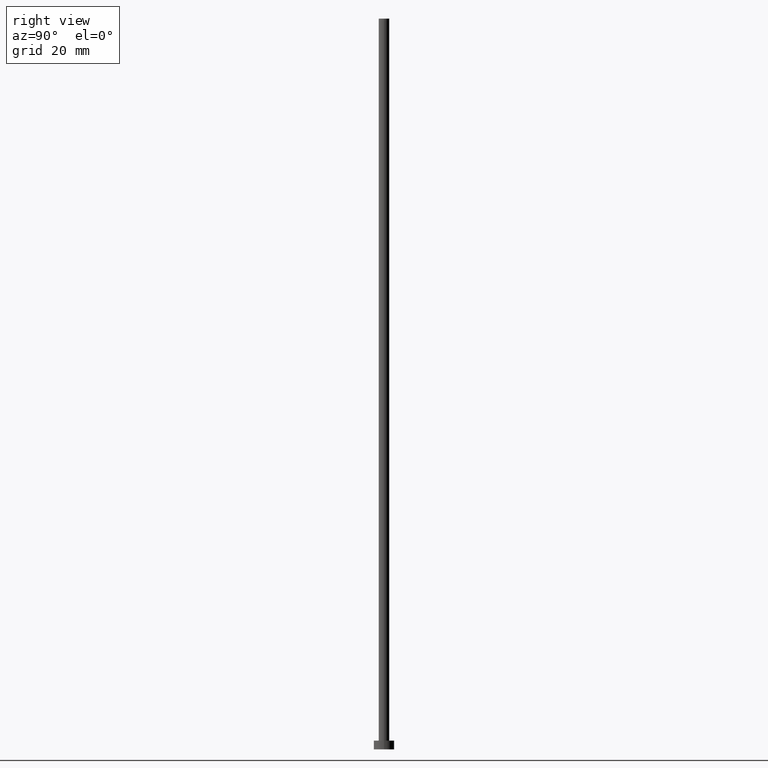
[diagram: clean part render]
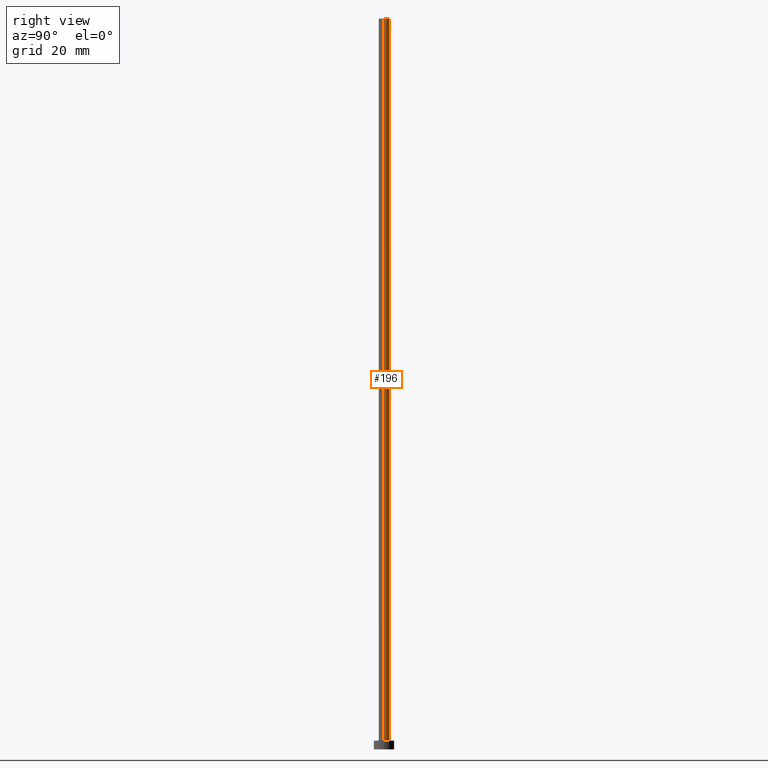
[diagram: same view with one face highlighted and labeled with its STEP entity id]
A machine part, right view. The second image highlights one B-rep face of the part: STEP entity #196.
In plain terms, the highlighted cylindrical surface (edge-blend (fillet) strip) has radius 1.8 mm, axis along (-0, -0, -1).
Its self-contained STEP definition (entity closure, byte-faithful):
#3 = CARTESIAN_POINT ( 'NONE',  ( -1.800000000000000044, 0.000000000000000000, 3.000000000000000000 ) ) ;
#9 = CARTESIAN_POINT ( 'NONE',  ( 0.000000000000000000, 0.000000000000000000, 3.000000000000000000 ) ) ;
#11 = LINE ( 'NONE', #94, #198 ) ;
#23 = ORIENTED_EDGE ( 'NONE', *, *, #150, .T. ) ;
#26 = CARTESIAN_POINT ( 'NONE',  ( -1.800000000000000044, 0.000000000000000000, 250.0000000000000000 ) ) ;
#47 = EDGE_LOOP ( 'NONE', ( #201, #23, #177, #139 ) ) ;
#51 = DIRECTION ( 'NONE',  ( -0.000000000000000000, -0.000000000000000000, -1.000000000000000000 ) ) ;
#63 = CARTESIAN_POINT ( 'NONE',  ( 1.800000000000000044, 2.204364238465235576E-16, 250.0000000000000000 ) ) ;
#69 = VECTOR ( 'NONE', #51, 1000.000000000000000 ) ;
#71 = EDGE_CURVE ( 'NONE', #130, #222, #99, .T. ) ;
#72 = DIRECTION ( 'NONE',  ( 0.000000000000000000, 0.000000000000000000, 1.000000000000000000 ) ) ;
#73 = DIRECTION ( 'NONE',  ( -1.000000000000000000, 0.000000000000000000, 0.000000000000000000 ) ) ;
#76 = DIRECTION ( 'NONE',  ( -0.000000000000000000, -0.000000000000000000, -1.000000000000000000 ) ) ;
#91 = FACE_OUTER_BOUND ( 'NONE', #47, .T. ) ;
#94 = CARTESIAN_POINT ( 'NONE',  ( -1.800000000000000044, 0.000000000000000000, 250.0000000000000000 ) ) ;
#99 = CIRCLE ( 'NONE', #122, 1.800000000000000044 ) ;
#103 = VERTEX_POINT ( 'NONE', #3 ) ;
#117 = CIRCLE ( 'NONE', #135, 1.800000000000000044 ) ;
#122 = AXIS2_PLACEMENT_3D ( 'NONE', #178, #72, #151 ) ;
#125 = CARTESIAN_POINT ( 'NONE',  ( 1.800000000000000044, 2.204364238465235576E-16, 250.0000000000000000 ) ) ;
#130 = VERTEX_POINT ( 'NONE', #63 ) ;
#135 = AXIS2_PLACEMENT_3D ( 'NONE', #9, #167, #250 ) ;
#139 = ORIENTED_EDGE ( 'NONE', *, *, #158, .F. ) ;
#148 = LINE ( 'NONE', #125, #69 ) ;
#150 = EDGE_CURVE ( 'NONE', #130, #153, #148, .T. ) ;
#151 = DIRECTION ( 'NONE',  ( 1.000000000000000000, 0.000000000000000000, 0.000000000000000000 ) ) ;
#153 = VERTEX_POINT ( 'NONE', #226 ) ;
#158 = EDGE_CURVE ( 'NONE', #222, #103, #11, .T. ) ;
#167 = DIRECTION ( 'NONE',  ( 0.000000000000000000, 0.000000000000000000, 1.000000000000000000 ) ) ;
#168 = CARTESIAN_POINT ( 'NONE',  ( 0.000000000000000000, 0.000000000000000000, 250.0000000000000000 ) ) ;
#177 = ORIENTED_EDGE ( 'NONE', *, *, #249, .T. ) ;
#178 = CARTESIAN_POINT ( 'NONE',  ( 0.000000000000000000, 0.000000000000000000, 250.0000000000000000 ) ) ;
#183 = DIRECTION ( 'NONE',  ( -0.000000000000000000, -0.000000000000000000, -1.000000000000000000 ) ) ;
#196 = ADVANCED_FACE ( 'NONE', ( #91 ), #252, .T. ) ;
#198 = VECTOR ( 'NONE', #183, 1000.000000000000000 ) ;
#201 = ORIENTED_EDGE ( 'NONE', *, *, #71, .F. ) ;
#209 = AXIS2_PLACEMENT_3D ( 'NONE', #168, #76, #73 ) ;
#222 = VERTEX_POINT ( 'NONE', #26 ) ;
#226 = CARTESIAN_POINT ( 'NONE',  ( 1.800000000000000044, 2.204364238465235576E-16, 3.000000000000000000 ) ) ;
#249 = EDGE_CURVE ( 'NONE', #153, #103, #117, .T. ) ;
#250 = DIRECTION ( 'NONE',  ( 1.000000000000000000, 0.000000000000000000, 0.000000000000000000 ) ) ;
#252 = CYLINDRICAL_SURFACE ( 'NONE', #209, 1.800000000000000044 ) ;